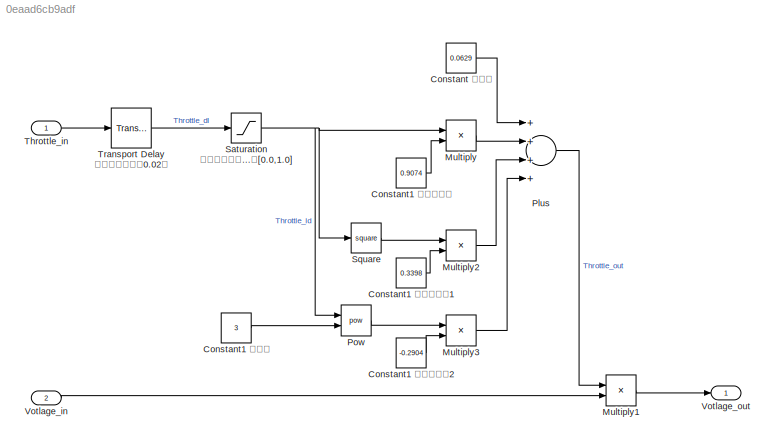
MODEL slx_0eaad6cb9adf
KIND model
CONFIG AbsTol = auto
CONFIG EnableMultiTasking = off
CONFIG FixedStep = auto
CONFIG MaxStep = auto
CONFIG MinStep = auto
CONFIG RelTol = 1e-3
CONFIG SampleTimeConstraint = Unconstrained
CONFIG Solver = FixedStepAuto
CONFIG SolverName = FixedStepAuto
CONFIG StartTime = 0.0
CONFIG StopTime = 10.0
BLOCK [Constant] Constant 常数项
  Value = 0.0629
BLOCK [Constant] Constant1 一次项系数
  Value = 0.9074
BLOCK [Constant] Constant1 三次项系数2
  Value = -0.2904
BLOCK [Constant] Constant1 二次项系数1
  Value = 0.3398
BLOCK [Constant] Constant1 幂级数
  Value = 3
BLOCK [Product] Multiply
  InputSameDT = off
  OutDataTypeStr = Inherit: Inherit via internal rule
  Ports = [2, 1]
  RndMeth = Floor
  SaturateOnIntegerOverflow = off
BLOCK [Product] Multiply1
  InputSameDT = off
  OutDataTypeStr = Inherit: Inherit via internal rule
  Ports = [2, 1]
  RndMeth = Floor
  SaturateOnIntegerOverflow = off
BLOCK [Product] Multiply2
  InputSameDT = off
  OutDataTypeStr = Inherit: Inherit via internal rule
  Ports = [2, 1]
  RndMeth = Floor
  SaturateOnIntegerOverflow = off
BLOCK [Product] Multiply3
  InputSameDT = off
  OutDataTypeStr = Inherit: Inherit via internal rule
  Ports = [2, 1]
  RndMeth = Floor
  SaturateOnIntegerOverflow = off
BLOCK [Sum] Plus
  InputSameDT = off
  Inputs = ++++
  OutDataTypeStr = Inherit: Inherit via internal rule
  Ports = [4, 1]
  SaturateOnIntegerOverflow = off
BLOCK [Math] Pow
  Operator = pow
  Ports = [2, 1]
  RndMeth = Zero
BLOCK [Saturate] Saturation 限制油门最大最小值[0.0,1.0]
  InputPortMap = u0
  LowerLimit = 0.0
  Ports = [1, 1]
  UpperLimit = 1.0
BLOCK [Math] Square
  Operator = square
  Ports = [1, 1]
BLOCK [Inport] Throttle_in
  IconDisplay = Port number
  PortDimensions = 1
BLOCK [TransportDelay] Transport Delay 模拟电调纯延时0.02秒
  DelayTime = 0.02
  Ports = [1, 1]
BLOCK [Inport] Votlage_in
  IconDisplay = Port number
  Port = 2
BLOCK [Outport] Votlage_out
  IconDisplay = Port number
LINE Constant 常数项:1 -> Plus:1
LINE Constant1 一次项系数:1 -> Multiply:2
LINE Constant1 三次项系数2:1 -> Multiply3:2
LINE Constant1 二次项系数1:1 -> Multiply2:2
LINE Constant1 幂级数:1 -> Pow:2
LINE Multiply1:1 -> Votlage_out:1
LINE Multiply2:1 -> Plus:3
LINE Multiply3:1 -> Plus:4
LINE Multiply:1 -> Plus:2
LINE Plus:1 -> Multiply1:1
LINE Pow:1 -> Multiply3:1
NET Saturation 限制油门最大最小值[0.0,1.0]:1 -> Multiply:1, Pow:1, Square:1
LINE Square:1 -> Multiply2:1
LINE Throttle_in:1 -> Transport Delay 模拟电调纯延时0.02秒:1
LINE Transport Delay 模拟电调纯延时0.02秒:1 -> Saturation 限制油门最大最小值[0.0,1.0]:1
LINE Votlage_in:1 -> Multiply1:2
note: NET lines group one-source signal fan-out (src -> all destinations, sorted); 1:1 wires keep LINE
